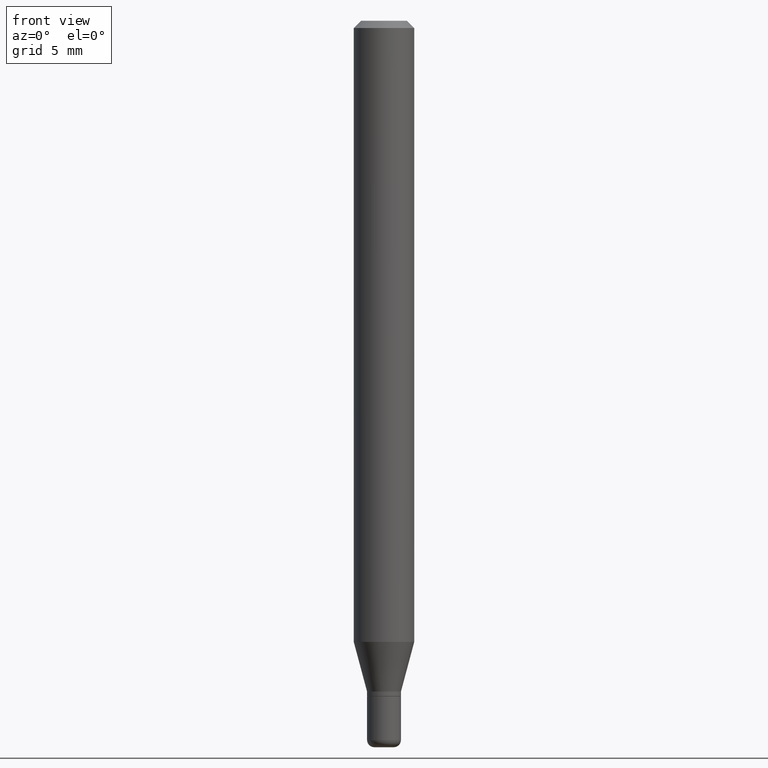
[diagram: clean part render]
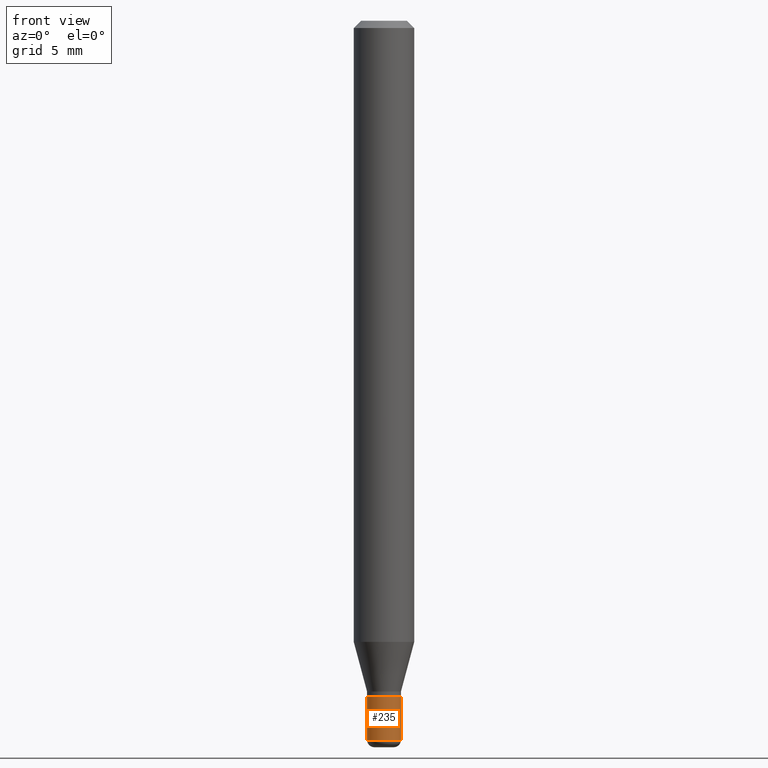
[diagram: same view with one face highlighted and labeled with its STEP entity id]
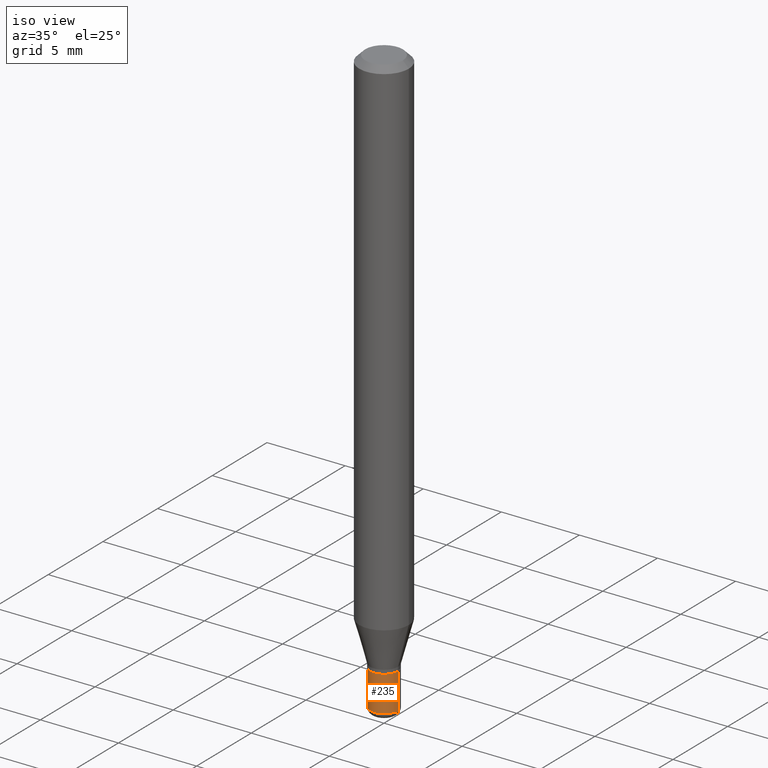
[diagram: same view with one face highlighted and labeled with its STEP entity id]
A machine part, front view. The second image highlights one B-rep face of the part: STEP entity #235.
A second angle (iso view) of the same face is appended — the face is thin or edge-on in the first view.
In plain terms, the highlighted cylindrical surface (edge-blend (fillet) strip) has radius 0.889 mm, axis along (-0, 0, 1).
Its self-contained STEP definition (entity closure, byte-faithful):
#7 = CARTESIAN_POINT ( 'NONE',  ( -0.03500000000000000333, -4.779043170418095363E-15, -1.395000000000000018 ) ) ;
#18 = LINE ( 'NONE', #95, #291 ) ;
#20 = CYLINDRICAL_SURFACE ( 'NONE', #146, 0.03499999999999999639 ) ;
#36 = DIRECTION ( 'NONE',  ( 1.000000000000000000, -6.982962677686280121E-15, 0.000000000000000000 ) ) ;
#48 = FACE_OUTER_BOUND ( 'NONE', #231, .T. ) ;
#69 = ORIENTED_EDGE ( 'NONE', *, *, #456, .F. ) ;
#72 = ORIENTED_EDGE ( 'NONE', *, *, #304, .T. ) ;
#95 = CARTESIAN_POINT ( 'NONE',  ( 0.03499999999999999639, -2.444036937190192757E-16, 1.706661871528577457E-30 ) ) ;
#124 = DIRECTION ( 'NONE',  ( -2.445468806185136877E-29, 3.491481338843145188E-15, 1.000000000000000000 ) ) ;
#134 = VECTOR ( 'NONE', #124, 39.37007874015748143 ) ;
#146 = AXIS2_PLACEMENT_3D ( 'NONE', #207, #213, #176 ) ;
#176 = DIRECTION ( 'NONE',  ( 1.000000000000000000, -6.982962677686265922E-15, 4.876176775795936353E-29 ) ) ;
#189 = AXIS2_PLACEMENT_3D ( 'NONE', #422, #325, #263 ) ;
#207 = CARTESIAN_POINT ( 'NONE',  ( 0.000000000000000000, 0.000000000000000000, 0.000000000000000000 ) ) ;
#213 = DIRECTION ( 'NONE',  ( -2.445468806185136597E-29, 3.491481338843145583E-15, 1.000000000000000000 ) ) ;
#231 = EDGE_LOOP ( 'NONE', ( #69, #72, #387, #321 ) ) ;
#235 = ADVANCED_FACE ( 'NONE', ( #48 ), #20, .T. ) ;
#253 = CARTESIAN_POINT ( 'NONE',  ( -0.03499999999999999639, 2.486899575160350394E-16, -1.721627281589216757E-30 ) ) ;
#263 = DIRECTION ( 'NONE',  ( 1.000000000000000000, -6.982962677686276966E-15, 0.000000000000000000 ) ) ;
#291 = VECTOR ( 'NONE', #334, 39.37007874015748143 ) ;
#294 = CARTESIAN_POINT ( 'NONE',  ( -0.03499999999999998945, -4.779043170418095363E-15, -1.485000000000000098 ) ) ;
#304 = EDGE_CURVE ( 'NONE', #463, #355, #338, .T. ) ;
#309 = DIRECTION ( 'NONE',  ( -2.445468806185136597E-29, 3.491481338843145583E-15, 1.000000000000000000 ) ) ;
#314 = EDGE_CURVE ( 'NONE', #506, #348, #438, .T. ) ;
#321 = ORIENTED_EDGE ( 'NONE', *, *, #314, .F. ) ;
#325 = DIRECTION ( 'NONE',  ( -2.445468806185136597E-29, 3.491481338843145583E-15, 1.000000000000000000 ) ) ;
#334 = DIRECTION ( 'NONE',  ( -2.445468806185136877E-29, 3.491481338843145188E-15, 1.000000000000000000 ) ) ;
#338 = CIRCLE ( 'NONE', #509, 0.03499999999999998945 ) ;
#348 = VERTEX_POINT ( 'NONE', #497 ) ;
#355 = VERTEX_POINT ( 'NONE', #400 ) ;
#370 = LINE ( 'NONE', #253, #134 ) ;
#387 = ORIENTED_EDGE ( 'NONE', *, *, #511, .T. ) ;
#395 = CARTESIAN_POINT ( 'NONE',  ( 3.631521177184928138E-29, -5.184849788182071492E-15, -1.485000000000000098 ) ) ;
#400 = CARTESIAN_POINT ( 'NONE',  ( 0.03499999999999998945, -5.429253481901091458E-15, -1.485000000000000098 ) ) ;
#422 = CARTESIAN_POINT ( 'NONE',  ( 3.411428984628265351E-29, -4.870616467686188228E-15, -1.395000000000000018 ) ) ;
#438 = CIRCLE ( 'NONE', #189, 0.03500000000000000333 ) ;
#456 = EDGE_CURVE ( 'NONE', #463, #506, #370, .T. ) ;
#463 = VERTEX_POINT ( 'NONE', #294 ) ;
#497 = CARTESIAN_POINT ( 'NONE',  ( 0.03500000000000000333, -5.115020161405208194E-15, -1.395000000000000018 ) ) ;
#506 = VERTEX_POINT ( 'NONE', #7 ) ;
#509 = AXIS2_PLACEMENT_3D ( 'NONE', #395, #309, #36 ) ;
#511 = EDGE_CURVE ( 'NONE', #355, #348, #18, .T. ) ;